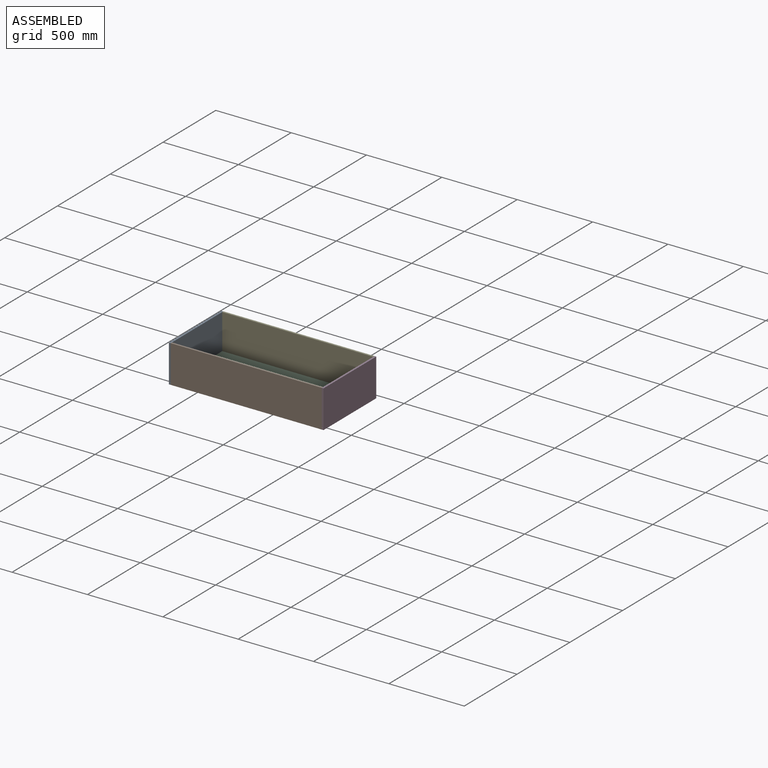
[diagram: assembled view]
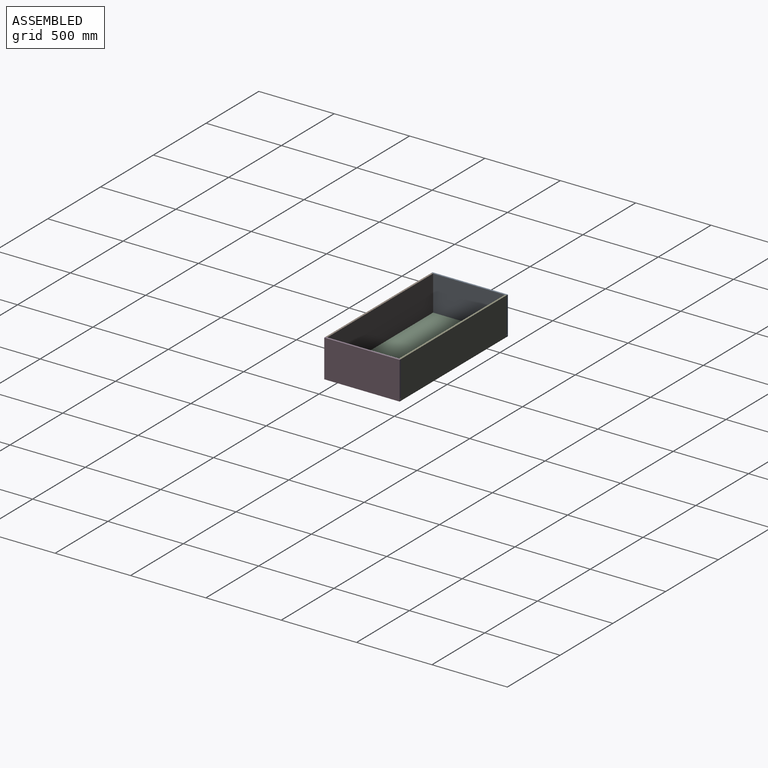
[diagram: assembled view, second angle]
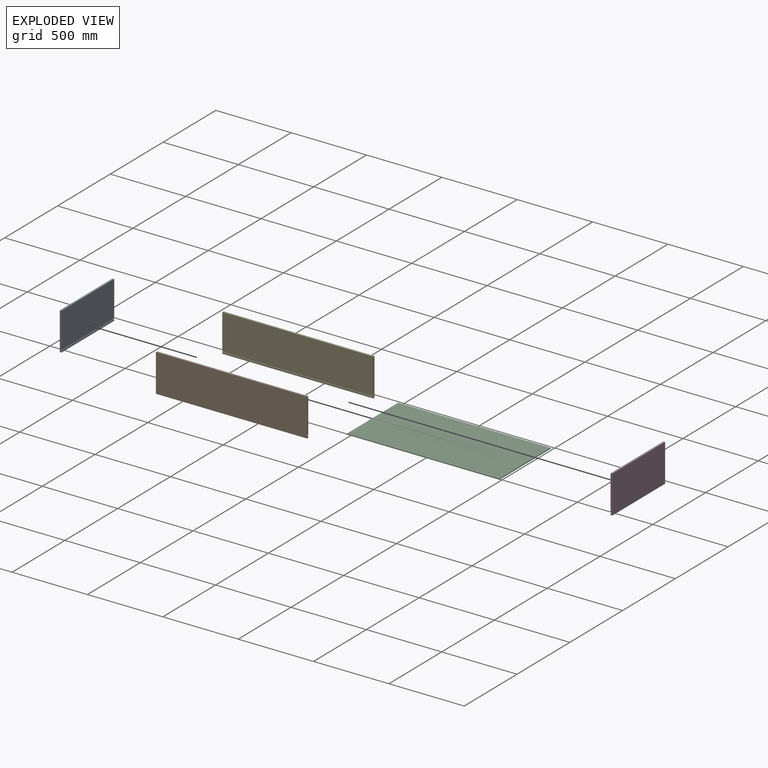
[diagram: exploded view]
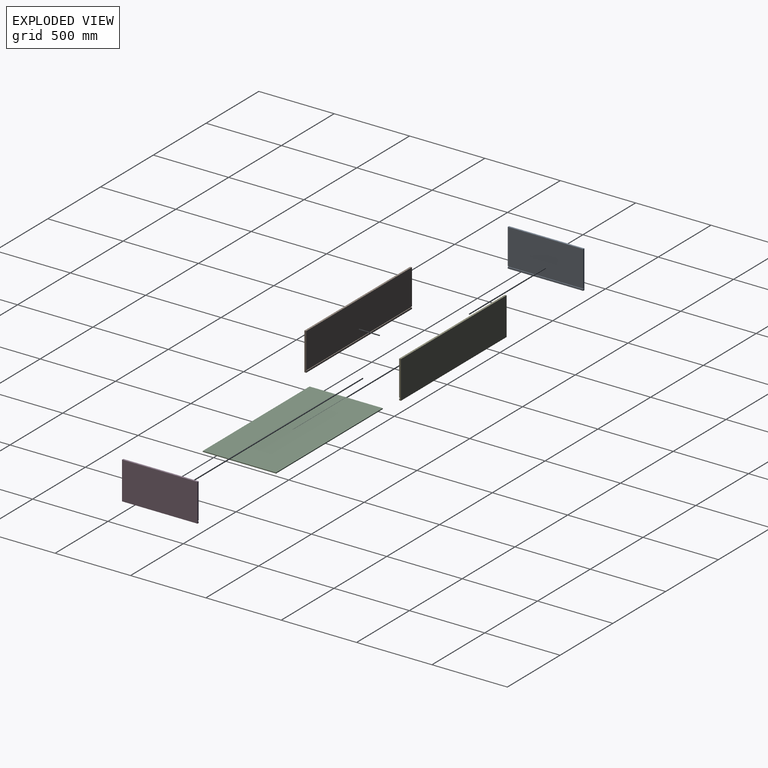
[diagram: exploded view, second angle]
ASSEMBLY  parts=5 mates=12
PART A: 10 faces, bbox 12x500x250 mm
  f0: plane 500x234mm, normal (1,0,0), area 117000mm2, adj f1,f3,f4,f7
  f1: plane 250x12mm, normal (0,-1,0), area 2970mm2, adj f0,f2,f4,f5,f6,f7,f8,f9
  f2: plane 500x12mm, normal (0,0,-1), area 6000mm2, adj f1,f3,f5,f6
  f3: plane 250x12mm, normal (0,1,0), area 2970mm2, adj f0,f2,f4,f5,f6,f7,f8,f9
  f4: plane 500x12mm, normal (0,0,1), area 6000mm2, adj f0,f1,f3,f6
  f5: plane 500x10mm, normal (1,0,0), area 5000mm2, adj f1,f2,f3,f8
  f6: plane 500x250mm, normal (-1,0,0), area 125000mm2, adj f1,f2,f3,f4
  f7: plane 500x5mm, normal (0,0,-1), area 2500mm2, adj f0,f1,f3,f9
  f8: plane 500x5mm, normal (0,0,1), area 2500mm2, adj f1,f3,f5,f9
  f9: plane 500x6mm, normal (1,0,0), area 3000mm2, adj f1,f3,f7,f8
PART B: 10 faces, bbox 1002x12x250 mm
  f0: plane 1002x10mm, normal (0,1,0), area 10020mm2, adj f1,f2,f3,f8
  f1: plane 250x12mm, normal (-1,0,0), area 2970mm2, adj f0,f2,f4,f5,f6,f7,f8,f9
  f2: plane 1002x12mm, normal (0,0,-1), area 12024mm2, adj f0,f1,f3,f5
  f3: plane 250x12mm, normal (1,0,0), area 2970mm2, adj f0,f2,f4,f5,f6,f7,f8,f9
  f4: plane 1002x12mm, normal (0,0,1), area 12024mm2, adj f1,f3,f5,f6
  f5: plane 1002x250mm, normal (0,-1,0), area 250500mm2, adj f1,f2,f3,f4
  f6: plane 1002x234mm, normal (0,1,0), area 234468mm2, adj f1,f3,f4,f7
  f7: plane 1002x5mm, normal (0,0,-1), area 5010mm2, adj f1,f3,f6,f9
  f8: plane 1002x5mm, normal (0,0,1), area 5010mm2, adj f0,f1,f3,f9
  f9: plane 1002x6mm, normal (0,1,0), area 6012mm2, adj f1,f3,f7,f8
PART C: 6 faces, bbox 1012x486x6 mm
  f0: plane 1012x6mm, normal (0,1,0), area 6072mm2, adj f1,f3,f4,f5
  f1: plane 486x6mm, normal (-1,0,0), area 2916mm2, adj f0,f2,f4,f5
  f2: plane 1012x6mm, normal (0,-1,0), area 6072mm2, adj f1,f3,f4,f5
  f3: plane 486x6mm, normal (1,0,0), area 2916mm2, adj f0,f2,f4,f5
  f4: plane 1012x486mm, normal (0,0,1), area 491832mm2, adj f0,f1,f2,f3
  f5: plane 1012x486mm, normal (0,0,-1), area 491832mm2, adj f0,f1,f2,f3
PART D: same geometry as A
PART E: same geometry as B
PLACE A t=(-3666,7498.51,-4015.58)mm
PLACE B t=(-11794,-7051,-2.26)mm
PLACE C t=(-1400.46,-1675.67,-435.57)mm
PLACE D rot(axis=(0,0,1),180deg) t=(-2640,-21124.51,-4015.58)mm
PLACE E rot(axis=(0,0,1),180deg) t=(5488,-6575,-2.26)mm
MATE planar D.f3 <-> B.f5  axis (0,-1,0) through (-2645.97,-7063,-319.43)mm
MATE planar A.f1 <-> B.f5  axis (0,-1,0) through (-3660.04,-7063,-319.43)mm
MATE planar A.f0 <-> B.f1  axis (1,0,0) through (-3654,-6813,-312.57)mm
MATE planar B.f4 <-> D.f4  axis (0,0,1) through (-3153,-7057,-195.57)mm
MATE planar B.f3 <-> D.f0  axis (1,0,0) through (-2652,-7057.04,-319.43)mm
MATE planar A.f0 <-> E.f3  axis (1,0,0) through (-3654,-6813,-312.57)mm
MATE planar E.f5 <-> A.f3  axis (0,1,0) through (-3153,-6563,-320.57)mm
MATE planar A.f4 <-> B.f4  axis (0,0,1) through (-3660,-6813,-195.57)mm
MATE planar C.f5 <-> E.f8  axis (0,0,-1) through (-3153,-6813,-435.57)mm
MATE planar C.f0 <-> E.f9  axis (0,1,0) through (-3153,-6570,-432.57)mm
MATE planar C.f1 <-> A.f9  axis (-1,0,0) through (-3659,-6813,-432.57)mm
MATE planar E.f4 <-> A.f4  axis (0,0,1) through (-3153,-6569,-195.57)mm
